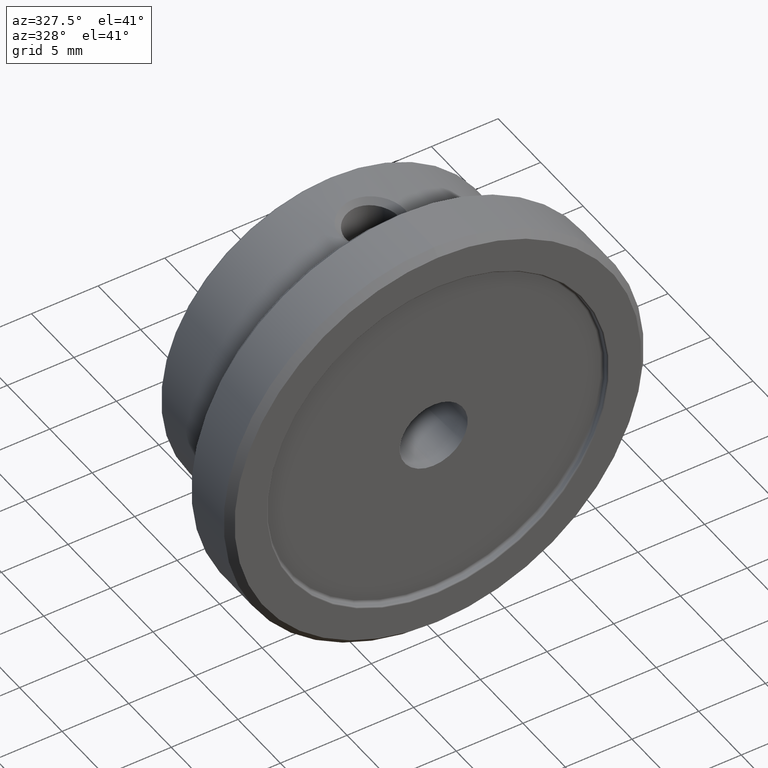
[diagram: clean part render]
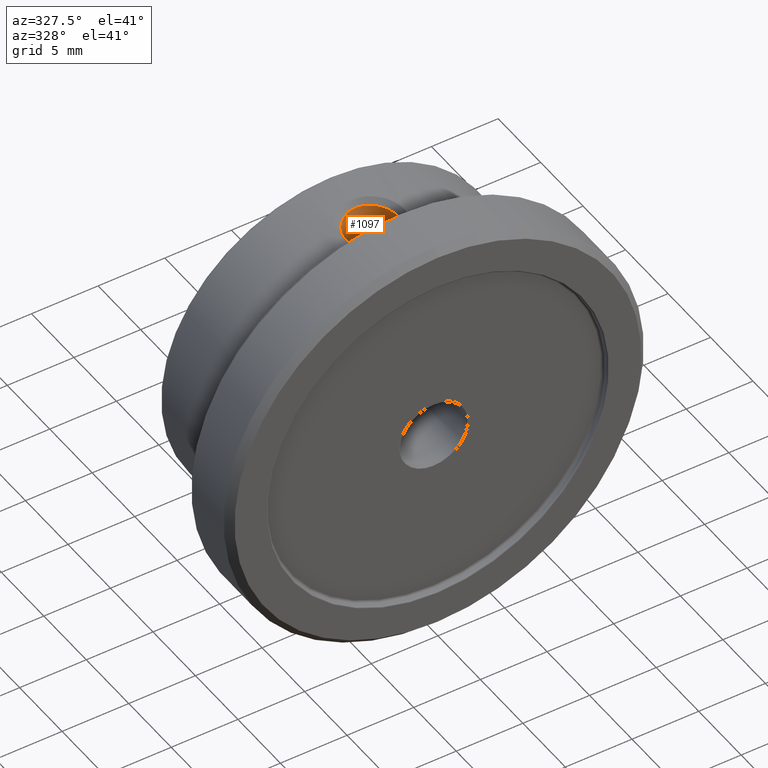
[diagram: same view with one face highlighted and labeled with its STEP entity id]
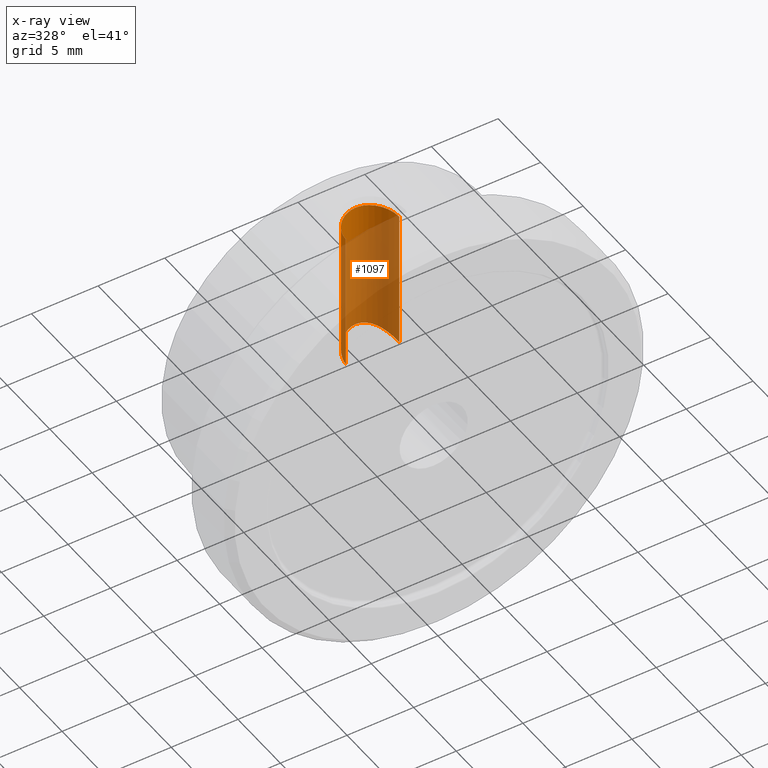
[diagram: x-ray of the same camera — body ghosted, the highlighted face saturated]
A machine part, auxiliary view. The second image highlights one B-rep face of the part: STEP entity #1097.
The next image is the same camera in x-ray: the body ghosted, the highlighted face saturated — about 83% of this face is hidden behind the body in this view.
In plain terms, the highlighted cylindrical surface (edge-blend (fillet) strip) has radius 2 mm, axis along (-0, -0, 1).
Its self-contained STEP definition (entity closure, byte-faithful):
#6 = B_SPLINE_CURVE_WITH_KNOTS ( 'NONE', 3,
 ( #354, #129, #1400, #579, #1137, #376, #1158, #136, #823, #221, #675, #667, #1131, #112, #558, #167, #708, #509, #966, #1415, #947, #610 ),
 .UNSPECIFIED., .F., .F.,
 ( 4, 2, 2, 2, 2, 2, 2, 2, 2, 2, 4 ),
 ( 0.000000000000000000, 0.06252939744408228528, 0.09379409616612323364, 0.1250587948881641820, 0.1875881923322462730, 0.2501175897763283640, 0.3126469872204103995, 0.3751763846644925460, 0.4377057821085746925, 0.4689704808306155437, 0.5002351795526563949 ),
 .UNSPECIFIED. ) ;
#9 = CARTESIAN_POINT ( 'NONE',  ( -0.5443019125252210877, 9.629332951062519186, 2.497657284945590916 ) ) ;
#68 = FACE_OUTER_BOUND ( 'NONE', #489, .T. ) ;
#100 = CARTESIAN_POINT ( 'NONE',  ( -0.9174658374066546607, 9.482157913850526754, 2.385615134336086740 ) ) ;
#112 = CARTESIAN_POINT ( 'NONE',  ( -0.9234069228295228582, 9.493329437347004074, 12.27029031049045216 ) ) ;
#114 = CARTESIAN_POINT ( 'NONE',  ( -1.512959700345129832, 9.013977740934812743, 2.058730961671067838 ) ) ;
#116 = CARTESIAN_POINT ( 'NONE',  ( 3.126399264344973108E-16, 9.700000000000002842, 2.552699999999998859 ) ) ;
#127 = CARTESIAN_POINT ( 'NONE',  ( 1.890722070559917034, 8.364402395843329785, 1.716573316234026869 ) ) ;
#129 = CARTESIAN_POINT ( 'NONE',  ( 2.000000000000003109, 7.894856174725750186, 12.09213183985431428 ) ) ;
#132 = CARTESIAN_POINT ( 'NONE',  ( 1.250583335058247814, 9.280589876758652323, 2.235352860111479156 ) ) ;
#136 = CARTESIAN_POINT ( 'NONE',  ( 1.184171952550362672, 9.344365346051542787, 12.24237913246243892 ) ) ;
#167 = CARTESIAN_POINT ( 'NONE',  ( -1.647703776889976490, 8.880339788134266499, 12.16728387897051711 ) ) ;
#176 = CARTESIAN_POINT ( 'NONE',  ( -1.999998886529536168, 7.699999993241577911, 12.09216065718996269 ) ) ;
#179 = ORIENTED_EDGE ( 'NONE', *, *, #1065, .T. ) ;
#217 = CARTESIAN_POINT ( 'NONE',  ( -1.729408440435220795, 8.712207898934650530, 1.879822502357733072 ) ) ;
#220 = CARTESIAN_POINT ( 'NONE',  ( 1.600503480817082602, 8.924994548693891971, 1.999787412458231106 ) ) ;
#221 = CARTESIAN_POINT ( 'NONE',  ( 0.4297222994213535929, 9.670758405200631458, 12.30769267381368337 ) ) ;
#242 = ORIENTED_EDGE ( 'NONE', *, *, #1411, .T. ) ;
#253 = VERTEX_POINT ( 'NONE', #939 ) ;
#295 = AXIS2_PLACEMENT_3D ( 'NONE', #1282, #1165, #485 ) ;
#310 = VERTEX_POINT ( 'NONE', #578 ) ;
#332 = CARTESIAN_POINT ( 'NONE',  ( -1.790380247886000253, 8.600502601814541848, 1.820998884080068381 ) ) ;
#336 = CARTESIAN_POINT ( 'NONE',  ( 0.5438896126428861555, 9.629480640943668845, 2.497771233445001293 ) ) ;
#354 = CARTESIAN_POINT ( 'NONE',  ( 2.000000000000002665, 7.700000000000000178, 12.09216025946302508 ) ) ;
#357 = CARTESIAN_POINT ( 'NONE',  ( -1.240161866250298228, 9.274241021845666566, 2.234277049461317333 ) ) ;
#376 = CARTESIAN_POINT ( 'NONE',  ( 1.626434947944109810, 8.873238346998897796, 12.16974830092038751 ) ) ;
#379 = CYLINDRICAL_SURFACE ( 'NONE', #295, 2.000000000000002665 ) ;
#427 = DIRECTION ( 'NONE',  ( -0.000000000000000000, -0.000000000000000000, 1.000000000000000000 ) ) ;
#431 = CARTESIAN_POINT ( 'NONE',  ( -0.6724063999946477965, 9.588306126123248063, 2.465922295050660740 ) ) ;
#485 = DIRECTION ( 'NONE',  ( 1.000000000000000000, 0.000000000000000000, 0.000000000000000000 ) ) ;
#489 = EDGE_LOOP ( 'NONE', ( #1336, #556, #531, #242, #179 ) ) ;
#509 = CARTESIAN_POINT ( 'NONE',  ( -1.928129081376379172, 8.247189872186392989, 12.11088603981815837 ) ) ;
#531 = ORIENTED_EDGE ( 'NONE', *, *, #1256, .T. ) ;
#543 = CARTESIAN_POINT ( 'NONE',  ( -0.1375392127278184939, 9.700000000000004619, 2.552699999999999303 ) ) ;
#555 = CARTESIAN_POINT ( 'NONE',  ( 2.000000000000011102, 7.699999999999982414, 1.586277809842957964 ) ) ;
#556 = ORIENTED_EDGE ( 'NONE', *, *, #682, .T. ) ;
#558 = CARTESIAN_POINT ( 'NONE',  ( -1.183049437499787748, 9.345759332424327326, 12.24254009905268425 ) ) ;
#577 = CARTESIAN_POINT ( 'NONE',  ( 0.6716816196546927520, 9.588545659689909684, 2.466107311338644692 ) ) ;
#578 = CARTESIAN_POINT ( 'NONE',  ( 2.000000000000002665, 7.700000000000000178, 12.09216025946302508 ) ) ;
#579 = CARTESIAN_POINT ( 'NONE',  ( 1.839940870568992581, 8.494822022973977482, 12.12974813119662443 ) ) ;
#610 = CARTESIAN_POINT ( 'NONE',  ( -1.999998886529536168, 7.699999993241577911, 12.09216065718996269 ) ) ;
#634 = VERTEX_POINT ( 'NONE', #961 ) ;
#665 = CARTESIAN_POINT ( 'NONE',  ( 1.741188355820054490, 8.716516146637902196, 1.872230443079304640 ) ) ;
#667 = CARTESIAN_POINT ( 'NONE',  ( -0.1980027437757758135, 9.700034624414122675, 12.31700079320012087 ) ) ;
#669 = CARTESIAN_POINT ( 'NONE',  ( -2.000000000000003109, 7.700000000000003730, 1.586277809842904007 ) ) ;
#675 = CARTESIAN_POINT ( 'NONE',  ( 0.1987016005266044882, 9.699965314535788252, 12.31701815938268219 ) ) ;
#676 = CARTESIAN_POINT ( 'NONE',  ( -1.890521792492065645, 8.365051667171570671, 1.716806838276739633 ) ) ;
#678 = CARTESIAN_POINT ( 'NONE',  ( 1.930995683128300833, 8.237788966306153426, 1.670130717738871784 ) ) ;
#682 = EDGE_CURVE ( 'NONE', #634, #253, #849, .T. ) ;
#686 = CARTESIAN_POINT ( 'NONE',  ( 0.2761204104010125948, 9.685565152161268898, 2.541345030554916118 ) ) ;
#708 = CARTESIAN_POINT ( 'NONE',  ( -1.796638187353358118, 8.616779835311801250, 12.13907387791702419 ) ) ;
#752 = VECTOR ( 'NONE', #427, 1000.000000000000000 ) ;
#768 = CARTESIAN_POINT ( 'NONE',  ( -1.337818148585994127, 9.191920627866817739, 2.176617290367199420 ) ) ;
#776 = CARTESIAN_POINT ( 'NONE',  ( -1.030353484428716770, 9.418897305393411301, 2.338453994710308237 ) ) ;
#783 = CARTESIAN_POINT ( 'NONE',  ( -1.590923250641715692, 8.918351999662609941, 1.998386700512857717 ) ) ;
#802 = CARTESIAN_POINT ( 'NONE',  ( 0.1373650395391813606, 9.700000000000001066, 2.552699999999999303 ) ) ;
#823 = CARTESIAN_POINT ( 'NONE',  ( 0.9225328901747197330, 9.493734376331904201, 12.27037314176054927 ) ) ;
#849 = B_SPLINE_CURVE_WITH_KNOTS ( 'NONE', 3,
 ( #669, #1134, #888, #1240, #676, #332, #217, #783, #114, #768, #357, #776, #100, #431, #9, #1464, #543, #1246 ),
 .UNSPECIFIED., .F., .F.,
 ( 4, 2, 2, 2, 2, 2, 2, 2, 4 ),
 ( 0.006579361478067010174, 0.006990844218094444812, 0.007402326958121880317, 0.007813809698149315822, 0.008225292438176750459, 0.008636775178204186831, 0.009048257918231621469, 0.009459740658259056106, 0.009871223398286490744 ),
 .UNSPECIFIED. ) ;
#888 = CARTESIAN_POINT ( 'NONE',  ( -1.985577417391540145, 7.975498789713586945, 1.604875164310590741 ) ) ;
#939 = CARTESIAN_POINT ( 'NONE',  ( 3.126399264344973108E-16, 9.700000000000002842, 2.552699999999998859 ) ) ;
#947 = CARTESIAN_POINT ( 'NONE',  ( -2.000000000387450960, 7.797923634049191755, 12.09213847247499096 ) ) ;
#961 = CARTESIAN_POINT ( 'NONE',  ( -2.000000000000003109, 7.700000000000003730, 1.586277809842904007 ) ) ;
#966 = CARTESIAN_POINT ( 'NONE',  ( -1.957037654942859417, 8.127767011951547715, 12.10384462103210090 ) ) ;
#990 = CARTESIAN_POINT ( 'NONE',  ( -2.000000000000002665, 7.699999999999999289, -15.75000000000000000 ) ) ;
#1001 = VECTOR ( 'NONE', #1204, 1000.000000000000000 ) ;
#1032 = CARTESIAN_POINT ( 'NONE',  ( 2.000000000000002220, 7.840057609621363000, 1.586277809842899122 ) ) ;
#1034 = B_SPLINE_CURVE_WITH_KNOTS ( 'NONE', 3,
 ( #116, #802, #686, #336, #577, #1149, #132, #220, #665, #127, #678, #1155, #1032, #1041 ),
 .UNSPECIFIED., .F., .F.,
 ( 4, 2, 2, 2, 2, 2, 4 ),
 ( 0.009871223398286490744, 0.01028218505592964904, 0.01069314671357280561, 0.01151507002885911873, 0.01233699334414543360, 0.01274795500178859016, 0.01315891665943174672 ),
 .UNSPECIFIED. ) ;
#1041 = CARTESIAN_POINT ( 'NONE',  ( 2.000000000000011102, 7.699999999999982414, 1.586277809842957964 ) ) ;
#1065 = EDGE_CURVE ( 'NONE', #310, #1078, #6, .T. ) ;
#1078 = VERTEX_POINT ( 'NONE', #176 ) ;
#1097 = ADVANCED_FACE ( 'NONE', ( #68 ), #379, .F. ) ;
#1110 = LINE ( 'NONE', #1446, #752 ) ;
#1131 = CARTESIAN_POINT ( 'NONE',  ( -0.4300762623580931532, 9.670722005900605822, 12.30765522342167451 ) ) ;
#1134 = CARTESIAN_POINT ( 'NONE',  ( -2.000000000000001776, 7.839298620529972617, 1.586277809842898900 ) ) ;
#1137 = CARTESIAN_POINT ( 'NONE',  ( 1.781024851190694758, 8.621807647073847392, 12.14151121525603827 ) ) ;
#1149 = CARTESIAN_POINT ( 'NONE',  ( 1.038634877009416257, 9.429821152582471555, 2.346011849743971478 ) ) ;
#1155 = CARTESIAN_POINT ( 'NONE',  ( 1.985483774143977254, 7.975346115192792240, 1.604972001377619195 ) ) ;
#1158 = CARTESIAN_POINT ( 'NONE',  ( 1.529741793959954910, 8.998630122451242386, 12.18638675360797130 ) ) ;
#1165 = DIRECTION ( 'NONE',  ( -0.000000000000000000, -0.000000000000000000, 1.000000000000000000 ) ) ;
#1204 = DIRECTION ( 'NONE',  ( -0.000000000000000000, -0.000000000000000000, 1.000000000000000000 ) ) ;
#1235 = LINE ( 'NONE', #990, #1001 ) ;
#1240 = CARTESIAN_POINT ( 'NONE',  ( -1.930160123647156167, 8.241201589679210571, 1.671114559376047914 ) ) ;
#1246 = CARTESIAN_POINT ( 'NONE',  ( 3.126399264344973108E-16, 9.700000000000002842, 2.552699999999998859 ) ) ;
#1256 = EDGE_CURVE ( 'NONE', #253, #1270, #1034, .T. ) ;
#1270 = VERTEX_POINT ( 'NONE', #555 ) ;
#1282 = CARTESIAN_POINT ( 'NONE',  ( 0.000000000000000000, 7.699999999999999289, -15.75000000000000000 ) ) ;
#1336 = ORIENTED_EDGE ( 'NONE', *, *, #1393, .F. ) ;
#1393 = EDGE_CURVE ( 'NONE', #634, #1078, #1235, .T. ) ;
#1400 = CARTESIAN_POINT ( 'NONE',  ( 1.971761684010634896, 8.125033743420480903, 12.10152525533662526 ) ) ;
#1411 = EDGE_CURVE ( 'NONE', #1270, #310, #1110, .T. ) ;
#1415 = CARTESIAN_POINT ( 'NONE',  ( -1.992956225420018379, 7.902747337683620366, 12.09447083795378219 ) ) ;
#1446 = CARTESIAN_POINT ( 'NONE',  ( 2.000000000000002665, 7.699999999999999289, -15.75000000000000000 ) ) ;
#1464 = CARTESIAN_POINT ( 'NONE',  ( -0.2774262252802561224, 9.685352587718611517, 2.541179091395793233 ) ) ;